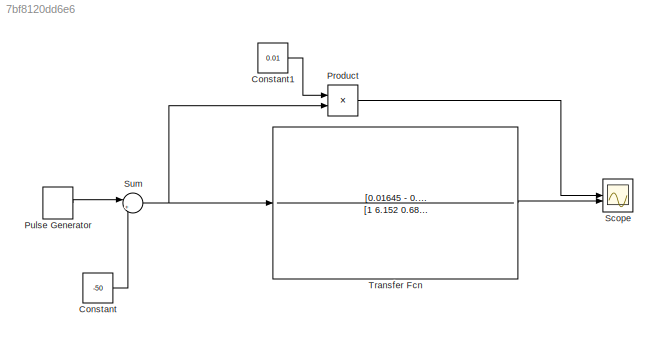
MODEL slx_7bf8120dd6e6
KIND model
CONFIG AbsTol = auto
CONFIG EnableMultiTasking = off
CONFIG FixedStep = auto
CONFIG MaxStep = auto
CONFIG MinStep = auto
CONFIG RelTol = 1e-3
CONFIG SampleTimeConstraint = Unconstrained
CONFIG SolverName = VariableStepAuto
CONFIG StartTime = 0.0
CONFIG StopTime = 25
BLOCK [Constant] Constant
  Value = -50
BLOCK [Constant] Constant1
  Value = 0.01
BLOCK [Product] Product
BLOCK [DiscretePulseGenerator] Pulse Generator
  Amplitude = 100
  Period = 24.6
  PulseType = Time based
  PulseWidth = 33
BLOCK [Scope] Scope
  Floating = off
  NumInputPorts = 2
  ScopeSpecificationString = Simulink.scopes.TimeScopeBlockCfg('CurrentConfiguration', extmgr.ConfigurationSet(extmgr.Configuration('Core','General UI',true),extmgr.Configuration('Core','Source UI',true),extmgr.Configuration('Sources','WiredSimulink',true),extmgr.Configuration('Visuals','Time Domain',true,'SerializedDisplays',{struct('MinYLimReal','-2.93225','MaxYLimReal','3.85303','YLabelReal','','MinYLimMag','0.00000','MaxY...<+1398ch>
BLOCK [Sum] Sum
  Inputs = |++
BLOCK [TransferFcn] Transfer Fcn
  Denominator = [1 6.152 0.6814 3.634e-12]
  Numerator = [0.01645 - 0.001026 0.01059]
LINE Constant1:1 -> Product:1
LINE Constant:1 -> Sum:2
LINE Product:1 -> Scope:1
LINE Pulse Generator:1 -> Sum:1
NET Sum:1 -> Product:2, Transfer Fcn:1
LINE Transfer Fcn:1 -> Scope:2
note: NET lines group one-source signal fan-out (src -> all destinations, sorted); 1:1 wires keep LINE
